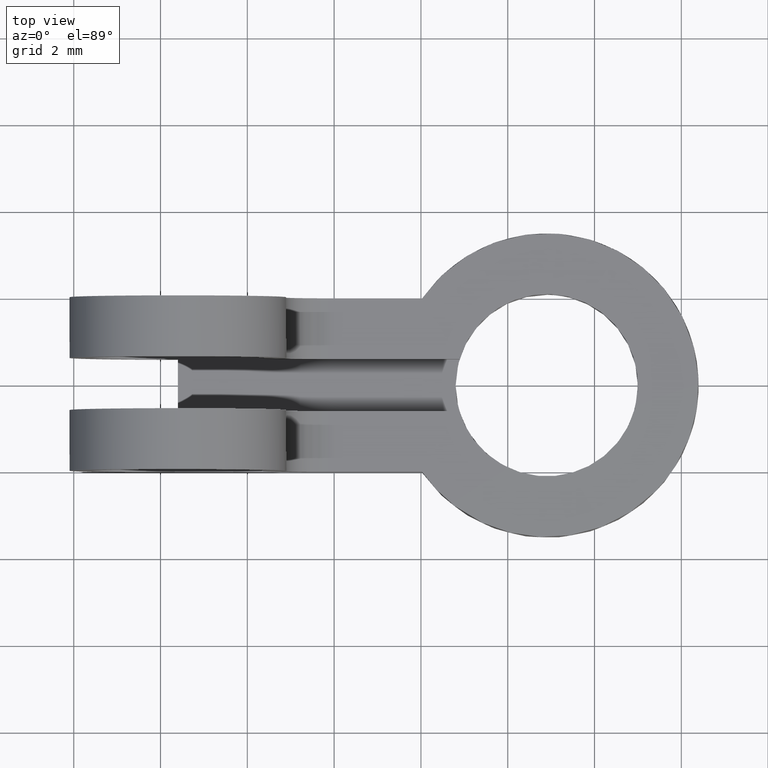
[diagram: clean part render]
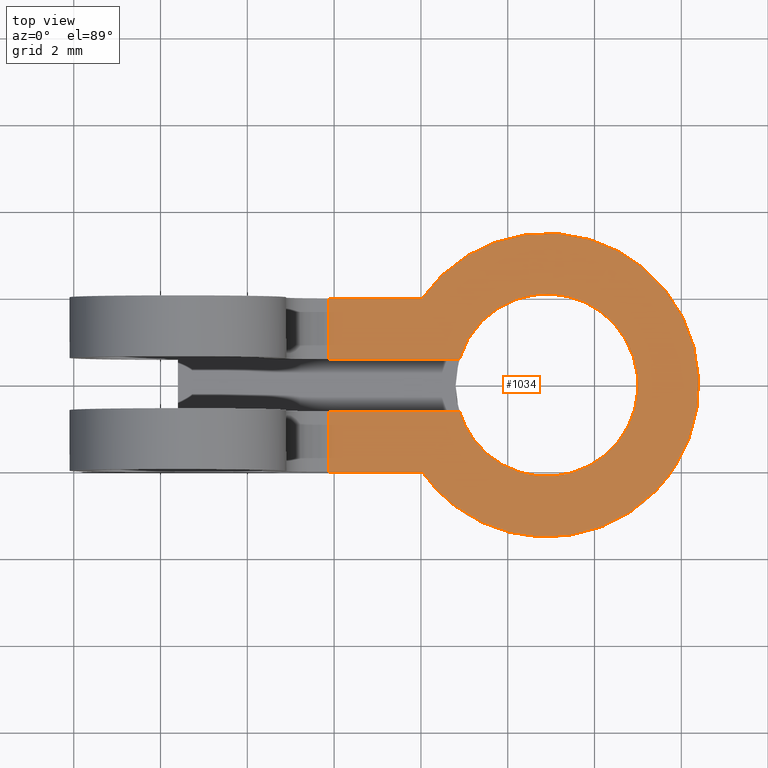
[diagram: same view with one face highlighted and labeled with its STEP entity id]
A machine part, top view. The second image highlights one B-rep face of the part: STEP entity #1034.
In plain terms, the highlighted face is a freeform B-spline surface patch.
Its self-contained STEP definition (entity closure, byte-faithful):
#293=CARTESIAN_POINT('',(6.887538820250209,0.600000000000045,-1.490000000000000));
#294=VERTEX_POINT('',#293);
#300=CARTESIAN_POINT('',(3.865530262456245,0.600000000000045,-1.490000000000000));
#301=VERTEX_POINT('',#300);
#302=CARTESIAN_POINT('',(6.887538820250209,0.600000000000045,-1.490000000000000));
#303=CARTESIAN_POINT('',(3.865530262456245,0.600000000000045,-1.490000000000000));
#304=QUASI_UNIFORM_CURVE('',1,(#302,#303),.UNSPECIFIED.,.F.,.U.);
#305=EDGE_CURVE('',#294,#301,#304,.T.);
#401=CARTESIAN_POINT('',(3.865530262456245,-0.600000000000045,-1.490000000000000));
#402=VERTEX_POINT('',#401);
#418=CARTESIAN_POINT('',(6.887538820250209,-0.600000000000045,-1.490000000000000));
#419=VERTEX_POINT('',#418);
#420=CARTESIAN_POINT('',(3.865530262456245,-0.600000000000045,-1.490000000000000));
#421=CARTESIAN_POINT('',(6.887538820250209,-0.600000000000045,-1.490000000000000));
#422=QUASI_UNIFORM_CURVE('',1,(#420,#421),.UNSPECIFIED.,.F.,.U.);
#423=EDGE_CURVE('',#402,#419,#422,.T.);
#525=CARTESIAN_POINT('',(6.887538820250203,0.600000000000047,-1.490000000000000));
#526=CARTESIAN_POINT('',(7.406352245028294,2.340153128164829,-1.490000000000000));
#527=CARTESIAN_POINT('',(9.203176122514147,2.078000057444005,-1.490000000000000));
#528=CARTESIAN_POINT('',(11.000000000000002,1.815846986723179,-1.490000000000000));
#529=CARTESIAN_POINT('',(11.0,0.0,-1.490000000000000));
#530=CARTESIAN_POINT('',(11.000000000000002,-1.815846986723179,-1.490000000000000));
#531=CARTESIAN_POINT('',(9.203176122514149,-2.078000057444005,-1.490000000000000));
#532=CARTESIAN_POINT('',(7.406352245028296,-2.340153128164829,-1.490000000000000));
#533=CARTESIAN_POINT('',(6.887538820250203,-0.600000000000048,-1.490000000000000));
#541=(BOUNDED_CURVE()B_SPLINE_CURVE(2,(#525,#526,#527,#528,#529,#530,#531,#532,#533),.UNSPECIFIED.,.F.,.U.)B_SPLINE_CURVE_WITH_KNOTS((3,2,2,2,3),(0.0,0.250000000000000,0.500000000000000,0.750000000000000,1.0),.UNSPECIFIED.)CURVE()GEOMETRIC_REPRESENTATION_ITEM()RATIONAL_B_SPLINE_CURVE((1.0,0.756428972921316,1.0,0.756428972921316,1.0,0.756428972921316,1.0,0.756428972921316,1.0))REPRESENTATION_ITEM(''));
#542=EDGE_CURVE('',#294,#419,#541,.T.);
#561=CARTESIAN_POINT('',(3.865530262456245,-2.000000000000225,-1.490000000000000));
#562=VERTEX_POINT('',#561);
#563=CARTESIAN_POINT('',(3.865530262456245,-0.600000000000045,-1.490000000000000));
#564=CARTESIAN_POINT('',(3.865530262456245,-2.000000000000225,-1.490000000000000));
#565=QUASI_UNIFORM_CURVE('',1,(#563,#564),.UNSPECIFIED.,.F.,.U.);
#566=EDGE_CURVE('',#402,#562,#565,.T.);
#687=CARTESIAN_POINT('',(6.027718691425030,-2.000000021102710,-1.490000000000000));
#688=VERTEX_POINT('',#687);
#694=CARTESIAN_POINT('',(3.865530262456245,-2.000000000000225,-1.490000000000000));
#695=CARTESIAN_POINT('',(6.027718691425030,-2.000000021102710,-1.490000000000000));
#696=QUASI_UNIFORM_CURVE('',1,(#694,#695),.UNSPECIFIED.,.F.,.U.);
#697=EDGE_CURVE('',#562,#688,#696,.T.);
#707=CARTESIAN_POINT('',(6.027718691425051,2.000000021102730,-1.490000000000000));
#708=VERTEX_POINT('',#707);
#803=CARTESIAN_POINT('',(3.865530262456245,2.0,-1.490000000000000));
#804=VERTEX_POINT('',#803);
#820=CARTESIAN_POINT('',(6.027718691425051,2.000000021102730,-1.490000000000000));
#821=CARTESIAN_POINT('',(3.865530262456245,2.0,-1.490000000000000));
#822=QUASI_UNIFORM_CURVE('',1,(#820,#821),.UNSPECIFIED.,.F.,.U.);
#823=EDGE_CURVE('',#708,#804,#822,.T.);
#935=CARTESIAN_POINT('',(6.027718691425043,2.000000021102734,-1.490000000000000));
#936=CARTESIAN_POINT('',(7.496194370752702,4.108937621765434,-1.490000000000001));
#937=CARTESIAN_POINT('',(9.948097185376359,3.339385016736788,-1.490000000000000));
#938=CARTESIAN_POINT('',(12.400000000000000,2.569832411708147,-1.490000000000001));
#939=CARTESIAN_POINT('',(12.400000000000000,0.0,-1.490000000000000));
#940=CARTESIAN_POINT('',(12.400000000000004,-2.569832411708168,-1.490000000000001));
#941=CARTESIAN_POINT('',(9.948097185376330,-3.339385016736797,-1.490000000000000));
#942=CARTESIAN_POINT('',(7.496194370752669,-4.108937621765422,-1.490000000000001));
#943=CARTESIAN_POINT('',(6.027718691425026,-2.000000021102709,-1.490000000000000));
#951=(BOUNDED_CURVE()B_SPLINE_CURVE(2,(#935,#936,#937,#938,#939,#940,#941,#942,#943),.UNSPECIFIED.,.F.,.U.)B_SPLINE_CURVE_WITH_KNOTS((3,2,2,2,3),(0.0,0.250000000000000,0.500000000000000,0.750000000000000,1.0),.UNSPECIFIED.)CURVE()GEOMETRIC_REPRESENTATION_ITEM()RATIONAL_B_SPLINE_CURVE((1.0,0.806057174981699,1.0,0.806057174981699,1.0,0.806057174981699,1.0,0.806057174981699,1.0))REPRESENTATION_ITEM(''));
#952=EDGE_CURVE('',#708,#688,#951,.T.);
#1015=CARTESIAN_POINT('',(3.439233546098513,-3.844685876918216,-1.490000000000000));
#1016=CARTESIAN_POINT('',(12.826296334837201,-3.844685876918216,-1.490000000000000));
#1017=CARTESIAN_POINT('',(3.439233546098513,3.844686184147647,-1.490000000000000));
#1018=CARTESIAN_POINT('',(12.826296334837201,3.844686184147647,-1.490000000000000));
#1019=B_SPLINE_SURFACE_WITH_KNOTS('',1,1,((#1015,#1017),(#1016,#1018)),.UNSPECIFIED.,.F.,.F.,.U.,(2,2),(2,2),(0.0,9.387062788738682),(0.0,7.689372061065864),.UNSPECIFIED.);
#1020=ORIENTED_EDGE('',*,*,#305,.F.);
#1021=ORIENTED_EDGE('',*,*,#542,.T.);
#1022=ORIENTED_EDGE('',*,*,#423,.F.);
#1023=ORIENTED_EDGE('',*,*,#566,.T.);
#1024=ORIENTED_EDGE('',*,*,#697,.T.);
#1025=ORIENTED_EDGE('',*,*,#952,.F.);
#1026=ORIENTED_EDGE('',*,*,#823,.T.);
#1027=CARTESIAN_POINT('',(3.865530262456245,2.0,-1.490000000000000));
#1028=CARTESIAN_POINT('',(3.865530262456245,0.600000000000045,-1.490000000000000));
#1029=QUASI_UNIFORM_CURVE('',1,(#1027,#1028),.UNSPECIFIED.,.F.,.U.);
#1030=EDGE_CURVE('',#804,#301,#1029,.T.);
#1031=ORIENTED_EDGE('',*,*,#1030,.T.);
#1032=EDGE_LOOP('',(#1020,#1021,#1022,#1023,#1024,#1025,#1026,#1031));
#1033=FACE_OUTER_BOUND('',#1032,.T.);
#1034=ADVANCED_FACE('',(#1033),#1019,.T.);